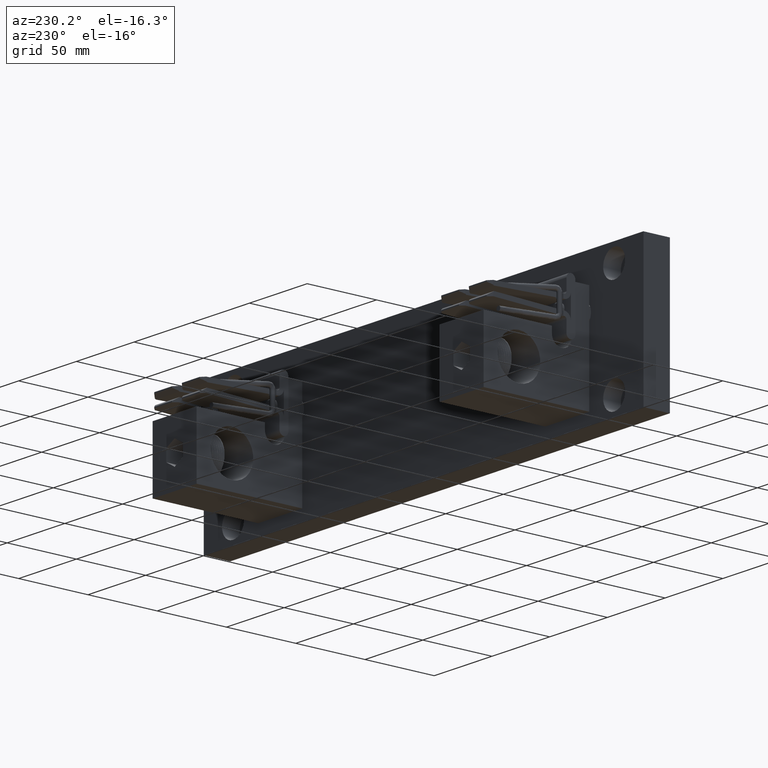
[diagram: clean part render]
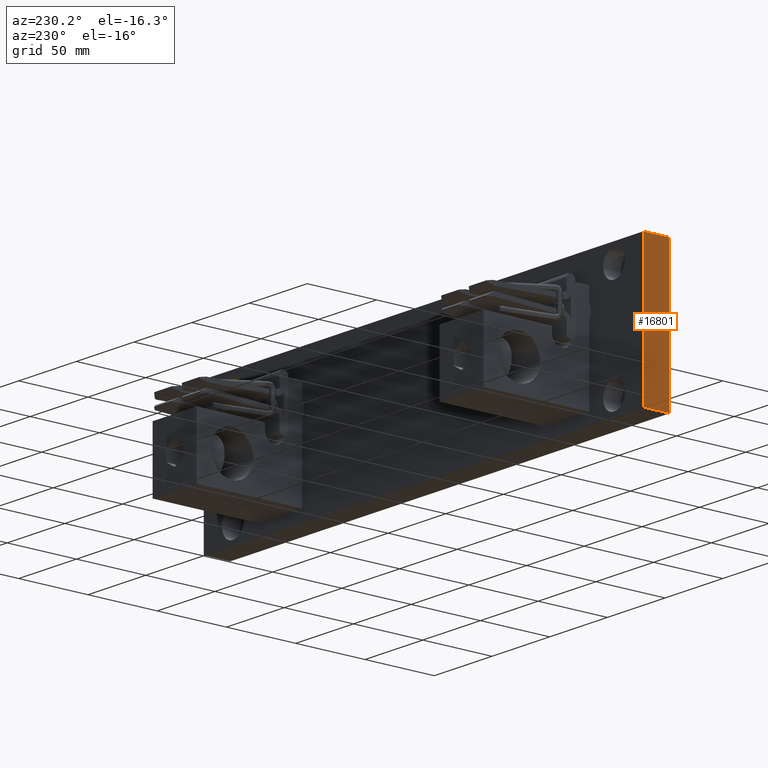
[diagram: same view with one face highlighted and labeled with its STEP entity id]
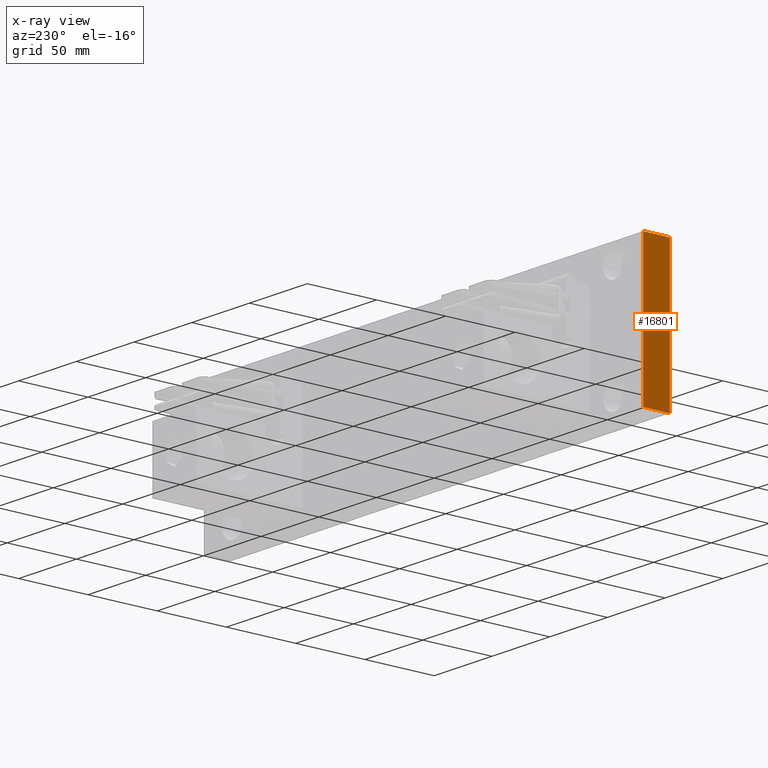
[diagram: x-ray of the same camera — body ghosted, the highlighted face saturated]
A machine part, auxiliary view. The second image highlights one B-rep face of the part: STEP entity #16801.
The next image is the same camera in x-ray: the body ghosted, the highlighted face saturated — about 0% of this face is hidden behind the body in this view.
In plain terms, the highlighted planar face has unit normal (1, -0, 0).
Its self-contained STEP definition (entity closure, byte-faithful):
#638 = ORIENTED_EDGE ( 'NONE', *, *, #11049, .F. ) ;
#1627 = CARTESIAN_POINT ( 'NONE',  ( -2.600000000000000500, -0.5000000000000000000, 1.434999999999999800 ) ) ;
#1908 = CARTESIAN_POINT ( 'NONE',  ( -2.600000000000000500, -0.5000000000000000000, 1.434999999999999800 ) ) ;
#3722 = CARTESIAN_POINT ( 'NONE',  ( -2.600000000000000500, -0.5000000000000000000, 1.434999999999999800 ) ) ;
#4102 = VECTOR ( 'NONE', #4146, 39.37007874015748100 ) ;
#4146 = DIRECTION ( 'NONE',  ( -0.0000000000000000000, -1.000000000000000000, -0.0000000000000000000 ) ) ;
#4250 = VECTOR ( 'NONE', #6521, 39.37007874015748100 ) ;
#5330 = CARTESIAN_POINT ( 'NONE',  ( -2.600000000000000500, -0.5000000000000000000, -2.564999999999999900 ) ) ;
#6052 = DIRECTION ( 'NONE',  ( 0.0000000000000000000, 0.0000000000000000000, -1.000000000000000000 ) ) ;
#6521 = DIRECTION ( 'NONE',  ( -0.0000000000000000000, -0.0000000000000000000, 1.000000000000000000 ) ) ;
#9091 = CARTESIAN_POINT ( 'NONE',  ( -2.600000000000000500, -0.5000000000000000000, -2.564999999999999900 ) ) ;
#9713 = ORIENTED_EDGE ( 'NONE', *, *, #10562, .T. ) ;
#9744 = ORIENTED_EDGE ( 'NONE', *, *, #10617, .T. ) ;
#10562 = EDGE_CURVE ( 'NONE', #10661, #28185, #22038, .T. ) ;
#10617 = EDGE_CURVE ( 'NONE', #28185, #18574, #11530, .T. ) ;
#10661 = VERTEX_POINT ( 'NONE', #5330 ) ;
#11049 = EDGE_CURVE ( 'NONE', #10661, #18418, #26760, .T. ) ;
#11530 = LINE ( 'NONE', #13617, #18187 ) ;
#12361 = CARTESIAN_POINT ( 'NONE',  ( -2.600000000000000500, -1.250000000000000000, -2.564999999999999900 ) ) ;
#13307 = EDGE_LOOP ( 'NONE', ( #9744, #17397, #638, #9713 ) ) ;
#13617 = CARTESIAN_POINT ( 'NONE',  ( -2.600000000000000500, -1.250000000000000000, 1.434999999999999800 ) ) ;
#13929 = EDGE_CURVE ( 'NONE', #18418, #18574, #26274, .T. ) ;
#15182 = DIRECTION ( 'NONE',  ( -0.0000000000000000000, -1.000000000000000000, -0.0000000000000000000 ) ) ;
#15850 = DIRECTION ( 'NONE',  ( -0.0000000000000000000, -0.0000000000000000000, 1.000000000000000000 ) ) ;
#16131 = CARTESIAN_POINT ( 'NONE',  ( -2.600000000000000500, -0.5000000000000000000, 1.434999999999999800 ) ) ;
#16801 = ADVANCED_FACE ( 'NONE', ( #19365 ), #23874, .F. ) ;
#17397 = ORIENTED_EDGE ( 'NONE', *, *, #13929, .F. ) ;
#18187 = VECTOR ( 'NONE', #15850, 39.37007874015748100 ) ;
#18418 = VERTEX_POINT ( 'NONE', #16131 ) ;
#18574 = VERTEX_POINT ( 'NONE', #18781 ) ;
#18781 = CARTESIAN_POINT ( 'NONE',  ( -2.600000000000000500, -1.250000000000000000, 1.434999999999999800 ) ) ;
#19365 = FACE_OUTER_BOUND ( 'NONE', #13307, .T. ) ;
#19487 = DIRECTION ( 'NONE',  ( 1.000000000000000000, -0.0000000000000000000, 0.0000000000000000000 ) ) ;
#20266 = VECTOR ( 'NONE', #15182, 39.37007874015748100 ) ;
#22038 = LINE ( 'NONE', #9091, #4102 ) ;
#23874 = PLANE ( 'NONE',  #28619 ) ;
#26274 = LINE ( 'NONE', #1627, #20266 ) ;
#26760 = LINE ( 'NONE', #1908, #4250 ) ;
#28185 = VERTEX_POINT ( 'NONE', #12361 ) ;
#28619 = AXIS2_PLACEMENT_3D ( 'NONE', #3722, #19487, #6052 ) ;